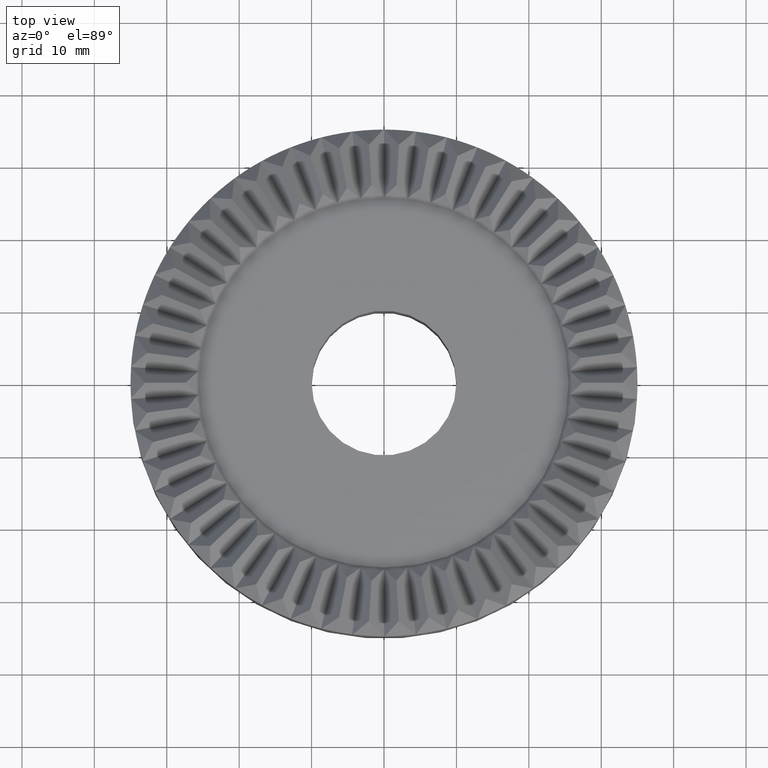
[diagram: clean part render]
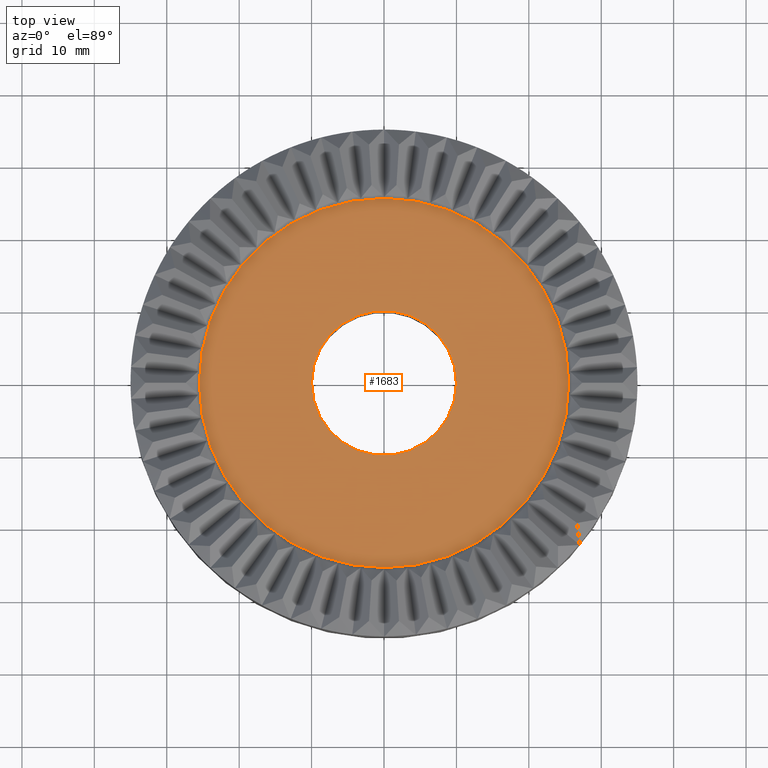
[diagram: same view with one face highlighted and labeled with its STEP entity id]
A machine part, top view. The second image highlights one B-rep face of the part: STEP entity #1683.
In plain terms, the highlighted planar face has unit normal (0, 0, 1).
Its self-contained STEP definition (entity closure, byte-faithful):
#15 = CARTESIAN_POINT ( 'NONE',  ( -10.00000000000000000, 0.0000000000000000000, 18.00000000000000400 ) ) ;
#304 = VERTEX_POINT ( 'NONE', #1147 ) ;
#397 = CIRCLE ( 'NONE', #641, 10.00000000000000000 ) ;
#585 = DIRECTION ( 'NONE',  ( 0.0000000000000000000, 0.0000000000000000000, 1.000000000000000000 ) ) ;
#601 = FACE_OUTER_BOUND ( 'NONE', #2559, .T. ) ;
#641 = AXIS2_PLACEMENT_3D ( 'NONE', #4676, #2077, #5115 ) ;
#721 = CARTESIAN_POINT ( 'NONE',  ( -25.49999999999999300, 3.238064074625089200E-015, 18.00000000000000400 ) ) ;
#856 = AXIS2_PLACEMENT_3D ( 'NONE', #3688, #1935, #1953 ) ;
#988 = DIRECTION ( 'NONE',  ( 0.0000000000000000000, 0.0000000000000000000, 1.000000000000000000 ) ) ;
#1103 = CIRCLE ( 'NONE', #2963, 25.49999999999999300 ) ;
#1147 = CARTESIAN_POINT ( 'NONE',  ( 25.49999999999999300, 0.0000000000000000000, 18.00000000000000400 ) ) ;
#1518 = PLANE ( 'NONE',  #856 ) ;
#1571 = ORIENTED_EDGE ( 'NONE', *, *, #5099, .F. ) ;
#1683 = ADVANCED_FACE ( 'NONE', ( #4615, #601 ), #1518, .T. ) ;
#1792 = DIRECTION ( 'NONE',  ( 0.0000000000000000000, 0.0000000000000000000, 1.000000000000000000 ) ) ;
#1852 = ORIENTED_EDGE ( 'NONE', *, *, #2895, .F. ) ;
#1935 = DIRECTION ( 'NONE',  ( 0.0000000000000000000, 0.0000000000000000000, 1.000000000000000000 ) ) ;
#1953 = DIRECTION ( 'NONE',  ( 1.000000000000000000, 0.0000000000000000000, -0.0000000000000000000 ) ) ;
#2077 = DIRECTION ( 'NONE',  ( 0.0000000000000000000, 0.0000000000000000000, 1.000000000000000000 ) ) ;
#2141 = AXIS2_PLACEMENT_3D ( 'NONE', #3187, #585, #3624 ) ;
#2507 = VERTEX_POINT ( 'NONE', #15 ) ;
#2559 = EDGE_LOOP ( 'NONE', ( #4944, #4847 ) ) ;
#2856 = VERTEX_POINT ( 'NONE', #721 ) ;
#2895 = EDGE_CURVE ( 'NONE', #2507, #3897, #397, .T. ) ;
#2963 = AXIS2_PLACEMENT_3D ( 'NONE', #4393, #1792, #4829 ) ;
#3166 = AXIS2_PLACEMENT_3D ( 'NONE', #3573, #988, #4015 ) ;
#3187 = CARTESIAN_POINT ( 'NONE',  ( 0.0000000000000000000, 0.0000000000000000000, 18.00000000000000400 ) ) ;
#3247 = EDGE_LOOP ( 'NONE', ( #1852, #1571 ) ) ;
#3340 = CIRCLE ( 'NONE', #2141, 10.00000000000000000 ) ;
#3382 = CARTESIAN_POINT ( 'NONE',  ( 10.00000000000000000, 1.224646799147353100E-015, 18.00000000000000400 ) ) ;
#3573 = CARTESIAN_POINT ( 'NONE',  ( 0.0000000000000000000, 0.0000000000000000000, 18.00000000000000400 ) ) ;
#3593 = EDGE_CURVE ( 'NONE', #2856, #304, #5524, .T. ) ;
#3624 = DIRECTION ( 'NONE',  ( 1.000000000000000000, 0.0000000000000000000, 0.0000000000000000000 ) ) ;
#3688 = CARTESIAN_POINT ( 'NONE',  ( 0.0000000000000000000, 0.0000000000000000000, 18.00000000000000400 ) ) ;
#3897 = VERTEX_POINT ( 'NONE', #3382 ) ;
#4015 = DIRECTION ( 'NONE',  ( 1.000000000000000000, 0.0000000000000000000, 0.0000000000000000000 ) ) ;
#4034 = EDGE_CURVE ( 'NONE', #304, #2856, #1103, .T. ) ;
#4393 = CARTESIAN_POINT ( 'NONE',  ( 0.0000000000000000000, 0.0000000000000000000, 18.00000000000000400 ) ) ;
#4615 = FACE_BOUND ( 'NONE', #3247, .T. ) ;
#4676 = CARTESIAN_POINT ( 'NONE',  ( 0.0000000000000000000, 0.0000000000000000000, 18.00000000000000400 ) ) ;
#4829 = DIRECTION ( 'NONE',  ( 1.000000000000000000, 0.0000000000000000000, 0.0000000000000000000 ) ) ;
#4847 = ORIENTED_EDGE ( 'NONE', *, *, #3593, .T. ) ;
#4944 = ORIENTED_EDGE ( 'NONE', *, *, #4034, .T. ) ;
#5099 = EDGE_CURVE ( 'NONE', #3897, #2507, #3340, .T. ) ;
#5115 = DIRECTION ( 'NONE',  ( 1.000000000000000000, 0.0000000000000000000, 0.0000000000000000000 ) ) ;
#5524 = CIRCLE ( 'NONE', #3166, 25.49999999999999300 ) ;